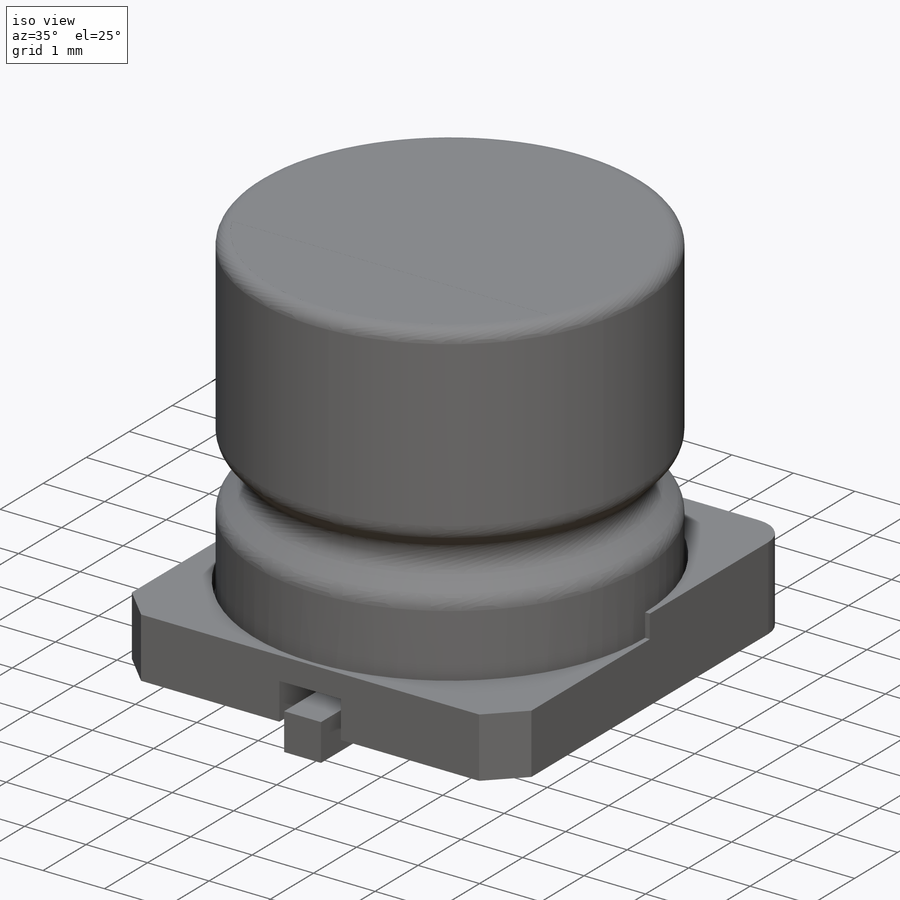
[diagram: iso view]
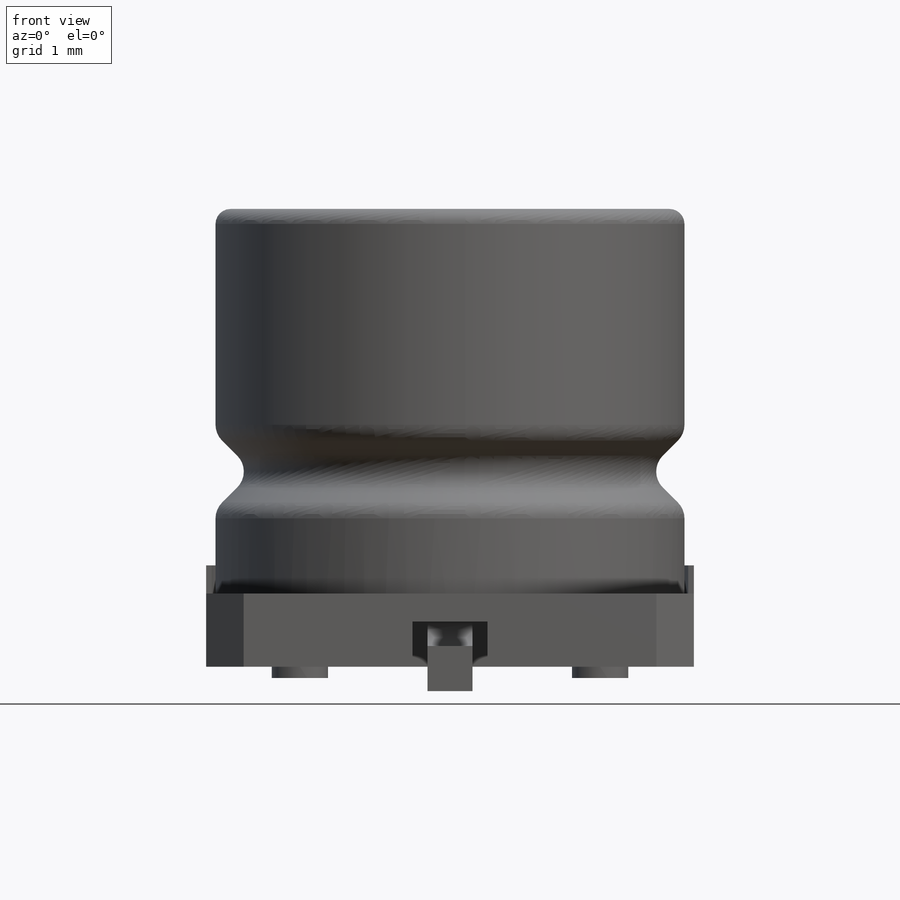
[diagram: front view]
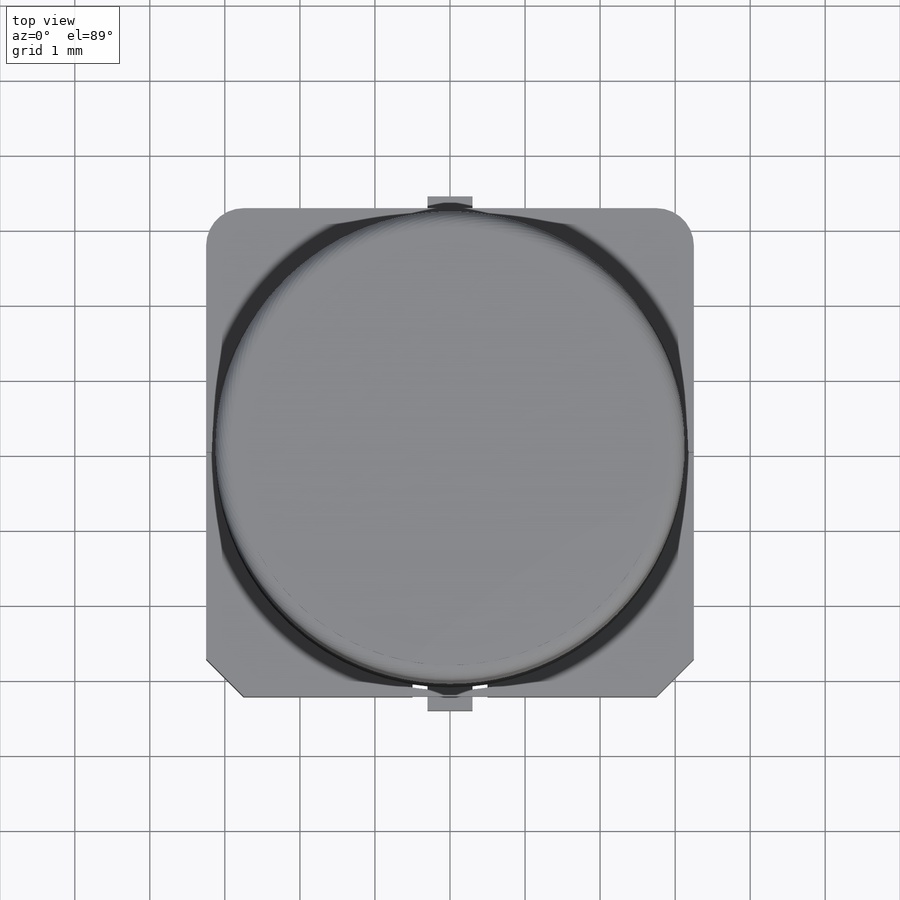
[diagram: top view]
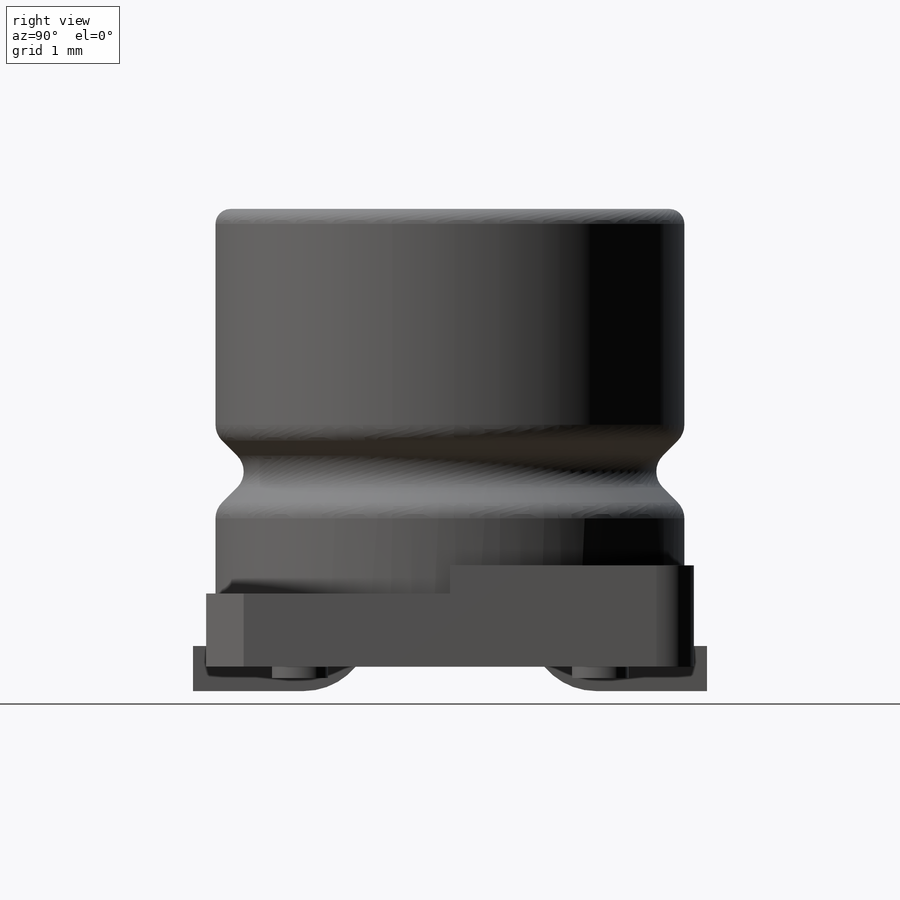
[diagram: right view]
SOLIDWORKS PART (.sldprt)
format: sldprt  version: not decoded by parser v0  size: 588,288 bytes
history: native  units: mm
features: sketch x8, extrude x3, cut_extrude x2, material x1, revolve x1, sweep x1, mirror x1 (+11 scaffold rows collapsed)
feature tree (28):
  scaffold x11  (default folders/planes/origin — collapsed)
  material  "Material <not specified>"
  sketch  "Sketch1"  dims[D5=0.6mm D6=0.4mm D1=6.25mm D2=11.0mm D3=4.0mm D4=1.0mm]
  revolve  "Revolve1"  Angle=360deg
  sketch  "Sketch2"  dims[D3=1.0mm D1=13.0mm D2=13.0mm D4=2.0mm D5=1.0mm D8=3.2mm]
  extrude  "Extrude1"  Depth=1.2mm
  sketch  "Sketch3"  dims[D1=0.5mm]
  extrude  "Extrude2"  Depth=1.5mm
  sketch  "Sketch4"  dims[D1=0.0mm D2=0.0mm]
  cut_extrude  "Extrude3"  Depth=0.75mm
  sketch  "Sketch5"  dims[D2=1.5mm D1=8.0mm]
  extrude  "Extrude4"  Depth=0.3mm
  sketch  "Sketch6"  dims[D4=1.2mm D1=6.85mm D2=0.05mm D3=2.7mm]
  sketch  "Sketch7"  dims[c1.D2=1.2mm c1.D1=1.2mm c2.D2=100.0mm c3.D2=90.0deg c4.D2=2.7mm]
  sweep  "Sweep1"
  mirror  "Mirror1"
  sketch  "Sketch8"  dims[D2=1.4mm D1=0.0mm]
  cut_extrude  "Cut-Extrude1"  Depth=0.001mm
decode coverage: 14 of 16 modeling features carry decoded parameters
note: suppression state not decoded; provenance and decode notes live in map.json
